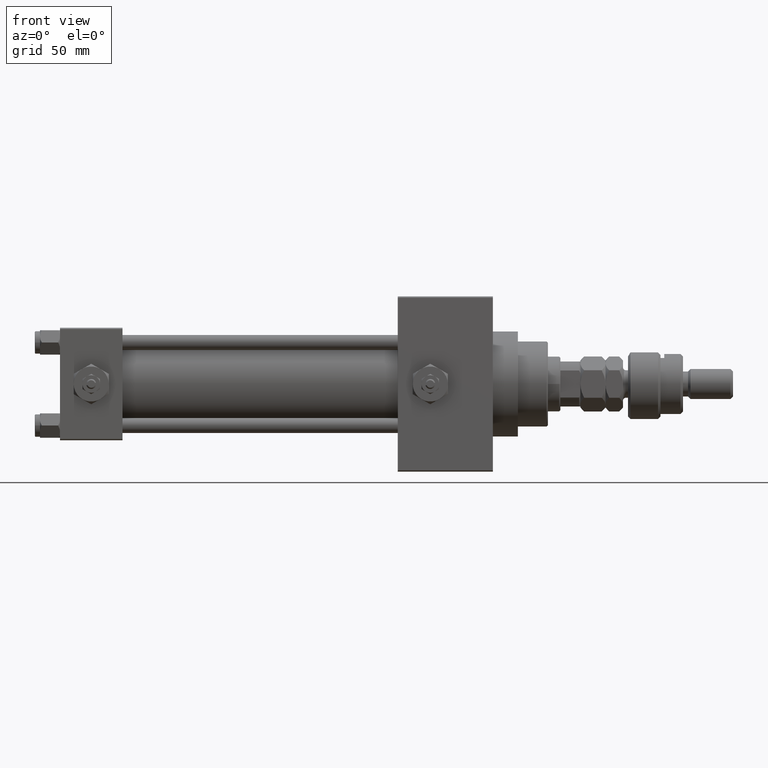
[diagram: clean part render]
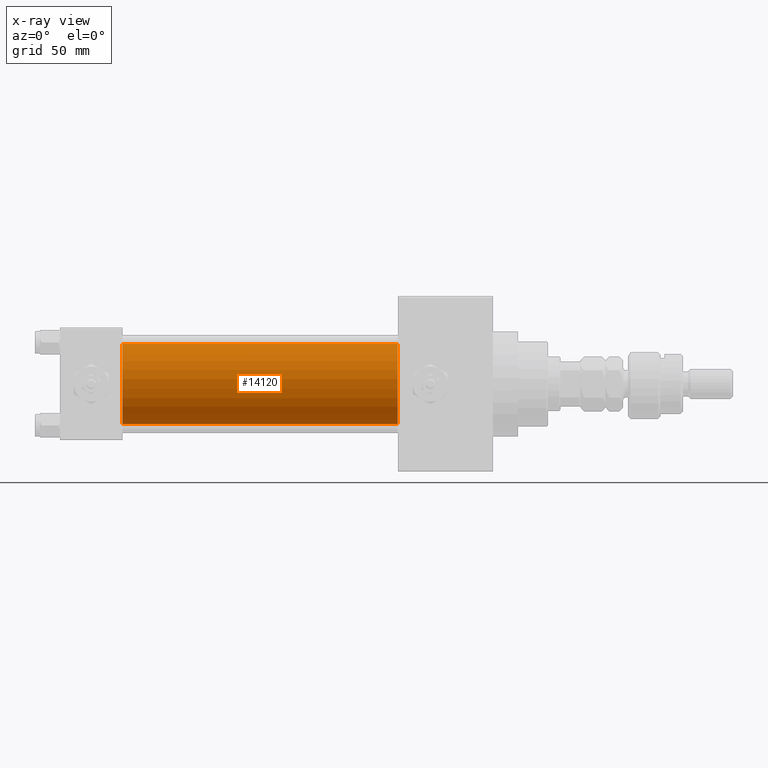
[diagram: x-ray — body ghosted, one internal face saturated and labeled with its STEP entity id]
A machine part, front view, then the same camera in x-ray: the body is ghosted and one INTERNAL B-rep face — a face not visible from any outside direction — is saturated and labeled: STEP entity #14120.
In plain terms, the highlighted cylindrical surface (partial cylindrical patch) has radius 16 mm, axis along (-1, -0, -0).
Its self-contained STEP definition (entity closure, byte-faithful):
#80 = AXIS2_PLACEMENT_3D ( 'NONE', #1532, #49609, #13615 ) ;
#386 = LINE ( 'NONE', #42486, #26303 ) ;
#1532 = CARTESIAN_POINT ( 'NONE',  ( 135.0000000000000000, -2.602085213965210642E-15, 0.000000000000000000 ) ) ;
#2119 = DIRECTION ( 'NONE',  ( -1.000000000000000000, -0.000000000000000000, -0.000000000000000000 ) ) ;
#2330 = EDGE_CURVE ( 'NONE', #30489, #3864, #12332, .T. ) ;
#3864 = VERTEX_POINT ( 'NONE', #15523 ) ;
#5462 = FACE_OUTER_BOUND ( 'NONE', #15824, .T. ) ;
#6405 = ORIENTED_EDGE ( 'NONE', *, *, #8819, .F. ) ;
#6489 = DIRECTION ( 'NONE',  ( -1.000000000000000000, -0.000000000000000000, -0.000000000000000000 ) ) ;
#8130 = AXIS2_PLACEMENT_3D ( 'NONE', #17956, #50001, #9800 ) ;
#8819 = EDGE_CURVE ( 'NONE', #11315, #34730, #27593, .T. ) ;
#9800 = DIRECTION ( 'NONE',  ( 0.000000000000000000, 0.000000000000000000, -1.000000000000000000 ) ) ;
#9914 = AXIS2_PLACEMENT_3D ( 'NONE', #33794, #45343, #49798 ) ;
#11315 = VERTEX_POINT ( 'NONE', #44151 ) ;
#12332 = CIRCLE ( 'NONE', #8130, 16.00000000000000000 ) ;
#12917 = ORIENTED_EDGE ( 'NONE', *, *, #43929, .F. ) ;
#13615 = DIRECTION ( 'NONE',  ( 0.000000000000000000, 0.000000000000000000, 1.000000000000000000 ) ) ;
#14120 = ADVANCED_FACE ( 'NONE', ( #5462 ), #21497, .F. ) ;
#14179 = VECTOR ( 'NONE', #2119, 1000.000000000000000 ) ;
#15523 = CARTESIAN_POINT ( 'NONE',  ( 135.0000000000000000, -6.426503353294456087E-16, -16.00000000000000000 ) ) ;
#15824 = EDGE_LOOP ( 'NONE', ( #35287, #18375, #6405, #12917 ) ) ;
#17887 = LINE ( 'NONE', #33678, #14179 ) ;
#17956 = CARTESIAN_POINT ( 'NONE',  ( 135.0000000000000000, -2.602085213965210642E-15, 0.000000000000000000 ) ) ;
#18375 = ORIENTED_EDGE ( 'NONE', *, *, #24484, .T. ) ;
#21497 = CYLINDRICAL_SURFACE ( 'NONE', #80, 16.00000000000000000 ) ;
#24484 = EDGE_CURVE ( 'NONE', #3864, #34730, #386, .T. ) ;
#24843 = CARTESIAN_POINT ( 'NONE',  ( 25.00000000000000000, -6.426503353294456087E-16, -16.00000000000000000 ) ) ;
#26303 = VECTOR ( 'NONE', #6489, 1000.000000000000000 ) ;
#27593 = CIRCLE ( 'NONE', #9914, 16.00000000000000000 ) ;
#29880 = CARTESIAN_POINT ( 'NONE',  ( 135.0000000000000000, -2.602085213965210642E-15, 16.00000000000000000 ) ) ;
#30489 = VERTEX_POINT ( 'NONE', #29880 ) ;
#33678 = CARTESIAN_POINT ( 'NONE',  ( 135.0000000000000000, -2.602085213965210642E-15, 16.00000000000000000 ) ) ;
#33794 = CARTESIAN_POINT ( 'NONE',  ( 25.00000000000000000, -2.602085213965210642E-15, 0.000000000000000000 ) ) ;
#34730 = VERTEX_POINT ( 'NONE', #24843 ) ;
#35287 = ORIENTED_EDGE ( 'NONE', *, *, #2330, .T. ) ;
#42486 = CARTESIAN_POINT ( 'NONE',  ( 135.0000000000000000, -6.426503353294456087E-16, -16.00000000000000000 ) ) ;
#43929 = EDGE_CURVE ( 'NONE', #30489, #11315, #17887, .T. ) ;
#44151 = CARTESIAN_POINT ( 'NONE',  ( 25.00000000000000000, -2.602085213965210642E-15, 16.00000000000000000 ) ) ;
#45343 = DIRECTION ( 'NONE',  ( 1.000000000000000000, 0.000000000000000000, 0.000000000000000000 ) ) ;
#49609 = DIRECTION ( 'NONE',  ( -1.000000000000000000, -0.000000000000000000, -0.000000000000000000 ) ) ;
#49798 = DIRECTION ( 'NONE',  ( 0.000000000000000000, 0.000000000000000000, -1.000000000000000000 ) ) ;
#50001 = DIRECTION ( 'NONE',  ( 1.000000000000000000, 0.000000000000000000, 0.000000000000000000 ) ) ;